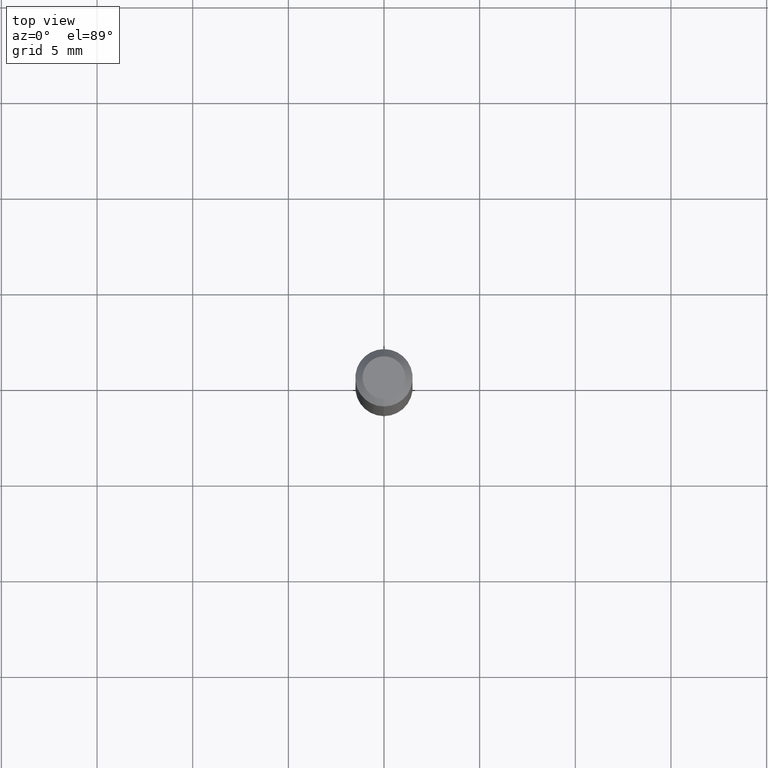
[diagram: clean part render]
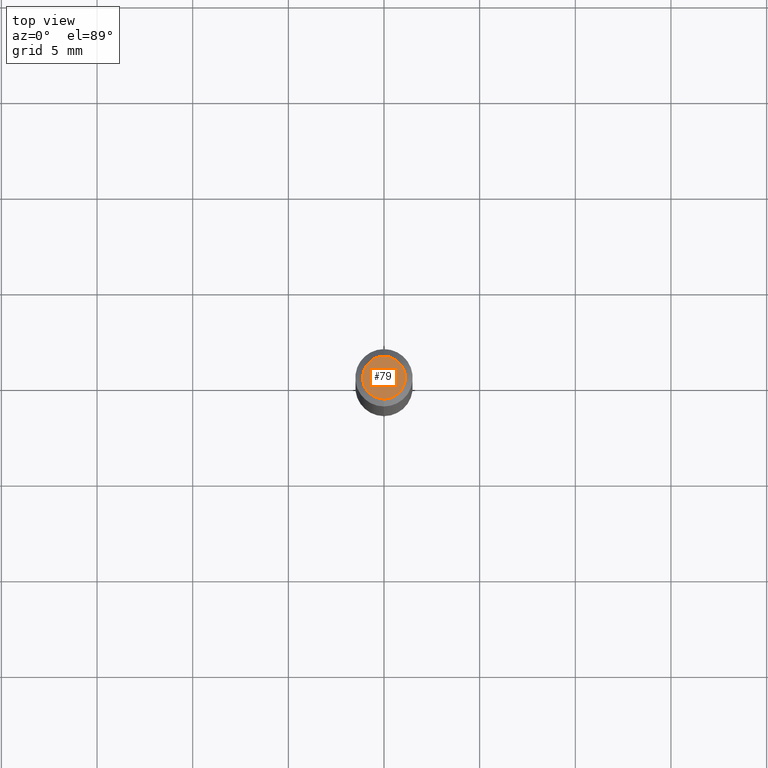
[diagram: same view with one face highlighted and labeled with its STEP entity id]
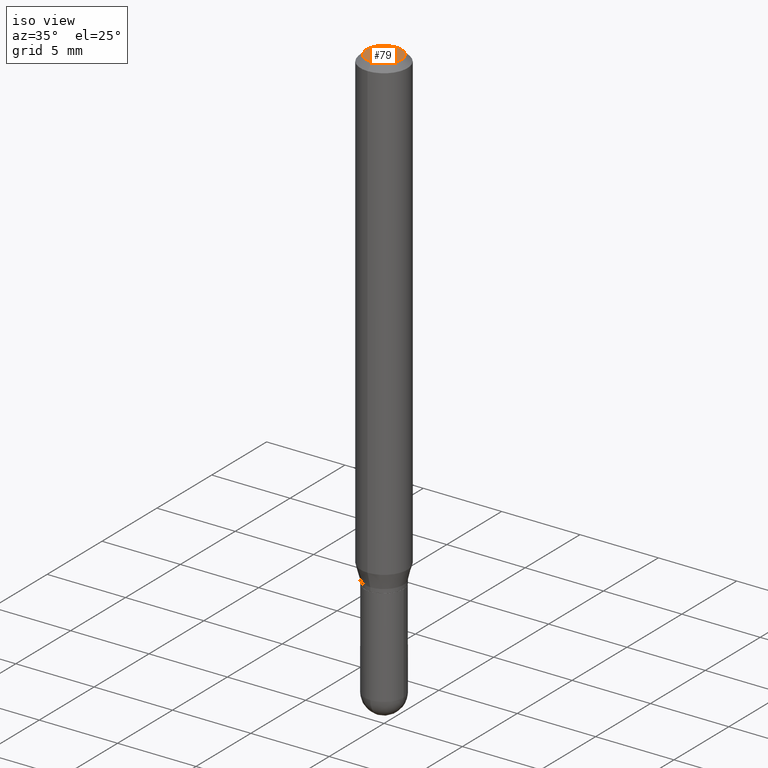
[diagram: same view with one face highlighted and labeled with its STEP entity id]
A machine part, top view. The second image highlights one B-rep face of the part: STEP entity #79.
A second angle (iso view) of the same face is appended — the face is thin or edge-on in the first view.
In plain terms, the highlighted planar face has unit normal (0, -0, -1).
Its self-contained STEP definition (entity closure, byte-faithful):
#14 = CIRCLE ( 'NONE', #299, 0.04404999999999999888 ) ;
#53 = EDGE_CURVE ( 'NONE', #479, #494, #14, .T. ) ;
#59 = DIRECTION ( 'NONE',  ( -2.445524756156847955E-29, 3.491401215299180303E-15, 1.000000000000000000 ) ) ;
#79 = ADVANCED_FACE ( 'NONE', ( #144 ), #444, .F. ) ;
#144 = FACE_OUTER_BOUND ( 'NONE', #488, .T. ) ;
#156 = CIRCLE ( 'NONE', #393, 0.04404999999999999888 ) ;
#218 = CARTESIAN_POINT ( 'NONE',  ( 3.075995059520799729E-16, 0.04404999999999999888, -1.996303947130745053E-16 ) ) ;
#220 = CARTESIAN_POINT ( 'NONE',  ( 2.241772005930627124E-45, -3.200509619141994808E-31, -9.166834235829126661E-17 ) ) ;
#225 = DIRECTION ( 'NONE',  ( -6.982962677686265133E-15, -1.000000000000000000, 3.491401215299180303E-15 ) ) ;
#299 = AXIS2_PLACEMENT_3D ( 'NONE', #220, #59, #497 ) ;
#329 = DIRECTION ( 'NONE',  ( 2.445524756156847675E-29, -3.491401215299180303E-15, -1.000000000000000000 ) ) ;
#382 = DIRECTION ( 'NONE',  ( -2.445524756156847955E-29, 3.491401215299180303E-15, 1.000000000000000000 ) ) ;
#393 = AXIS2_PLACEMENT_3D ( 'NONE', #459, #382, #225 ) ;
#435 = ORIENTED_EDGE ( 'NONE', *, *, #53, .T. ) ;
#444 = PLANE ( 'NONE',  #509 ) ;
#459 = CARTESIAN_POINT ( 'NONE',  ( 2.241772005930627124E-45, -3.200509619141994808E-31, -9.166834235829126661E-17 ) ) ;
#477 = CARTESIAN_POINT ( 'NONE',  ( 3.599717260347271507E-16, 0.04404999999999999888, -2.454645658922200893E-16 ) ) ;
#479 = VERTEX_POINT ( 'NONE', #477 ) ;
#488 = EDGE_LOOP ( 'NONE', ( #435, #508 ) ) ;
#493 = DIRECTION ( 'NONE',  ( 6.982962677686265922E-15, 1.000000000000000000, -3.491401215299180303E-15 ) ) ;
#494 = VERTEX_POINT ( 'NONE', #501 ) ;
#497 = DIRECTION ( 'NONE',  ( -6.982962677686265133E-15, -1.000000000000000000, 3.491401215299180303E-15 ) ) ;
#501 = CARTESIAN_POINT ( 'NONE',  ( -3.536586717851222218E-16, -0.04404999999999999888, 6.212788117563761772E-17 ) ) ;
#506 = EDGE_CURVE ( 'NONE', #494, #479, #156, .T. ) ;
#508 = ORIENTED_EDGE ( 'NONE', *, *, #506, .T. ) ;
#509 = AXIS2_PLACEMENT_3D ( 'NONE', #218, #329, #493 ) ;